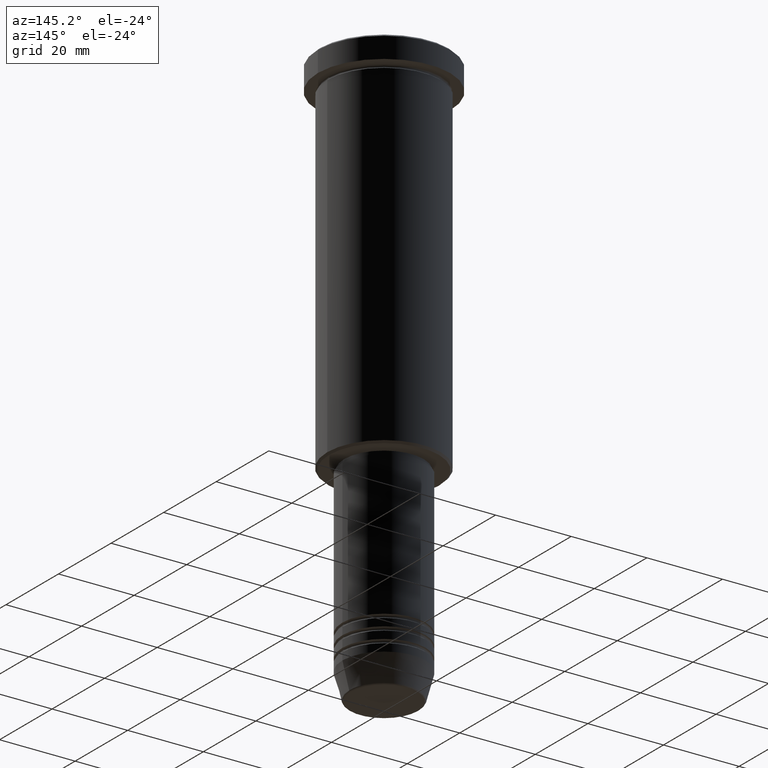
[diagram: clean part render]
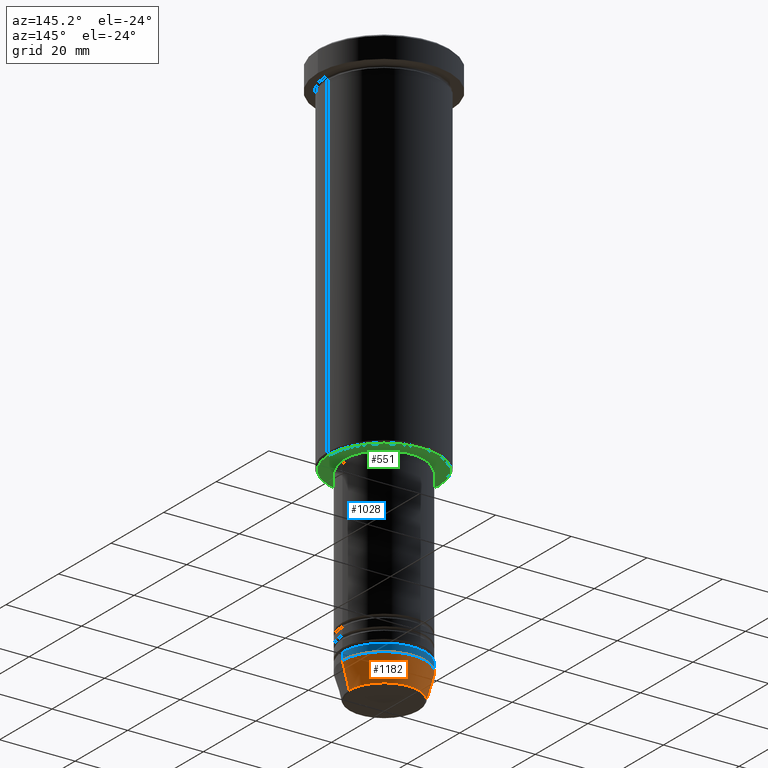
[diagram: same view with three faces highlighted in distinct colors, each labeled with its STEP entity id]
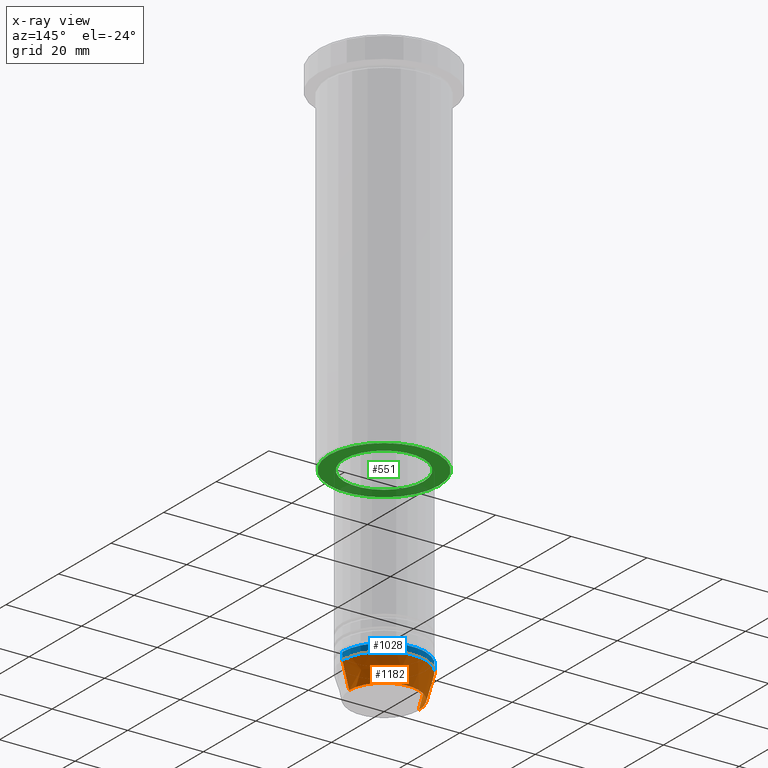
[diagram: x-ray of the same camera — body ghosted, the three highlighted faces saturated]
A machine part, auxiliary view with three faces highlighted in distinct colors.
The next image is the same camera in x-ray (body ghosted, the three faces saturated) — at least one of them is partly hidden behind the body in this view.
Their STEP definitions:

[orange] entity #1182 — the highlighted conical surface has half-angle 15 deg.
#10 = CIRCLE ( 'NONE', #714, 11.00000000000000000 ) ;
#34 = VECTOR ( 'NONE', #708, 1000.000000000000000 ) ;
#35 = VECTOR ( 'NONE', #484, 1000.000000000000000 ) ;
#102 = LINE ( 'NONE', #933, #35 ) ;
#109 = CARTESIAN_POINT ( 'NONE',  ( 0.000000000000000000, 0.000000000000000000, -144.0000000000000284 ) ) ;
#178 = CARTESIAN_POINT ( 'NONE',  ( 0.000000000000000000, 0.000000000000000000, -150.6294095225512706 ) ) ;
#242 = CARTESIAN_POINT ( 'NONE',  ( -11.00000000000000000, 1.347111479062088405E-15, -144.0000000000000284 ) ) ;
#278 = DIRECTION ( 'NONE',  ( -0.000000000000000000, -0.000000000000000000, 1.000000000000000000 ) ) ;
#287 = AXIS2_PLACEMENT_3D ( 'NONE', #178, #278, #1176 ) ;
#306 = AXIS2_PLACEMENT_3D ( 'NONE', #109, #1091, #464 ) ;
#319 = DIRECTION ( 'NONE',  ( 1.000000000000000000, 0.000000000000000000, 0.000000000000000000 ) ) ;
#337 = ORIENTED_EDGE ( 'NONE', *, *, #541, .T. ) ;
#383 = EDGE_CURVE ( 'NONE', #504, #710, #1144, .T. ) ;
#425 = ORIENTED_EDGE ( 'NONE', *, *, #860, .F. ) ;
#464 = DIRECTION ( 'NONE',  ( 1.000000000000000000, 0.000000000000000000, 0.000000000000000000 ) ) ;
#484 = DIRECTION ( 'NONE',  ( 0.2588190451025213501, 0.000000000000000000, 0.9659258262890680902 ) ) ;
#490 = VERTEX_POINT ( 'NONE', #827 ) ;
#504 = VERTEX_POINT ( 'NONE', #720 ) ;
#518 = CARTESIAN_POINT ( 'NONE',  ( 0.000000000000000000, 0.000000000000000000, -144.0000000000000284 ) ) ;
#541 = EDGE_CURVE ( 'NONE', #490, #504, #814, .T. ) ;
#580 = FACE_OUTER_BOUND ( 'NONE', #1114, .T. ) ;
#666 = ORIENTED_EDGE ( 'NONE', *, *, #1133, .F. ) ;
#708 = DIRECTION ( 'NONE',  ( -0.2588190451025213501, 3.169619151431772337E-17, 0.9659258262890680902 ) ) ;
#710 = VERTEX_POINT ( 'NONE', #934 ) ;
#714 = AXIS2_PLACEMENT_3D ( 'NONE', #518, #804, #319 ) ;
#720 = CARTESIAN_POINT ( 'NONE',  ( -9.223655072137189492, 1.238341722557647202E-15, -150.6294095225512706 ) ) ;
#803 = ORIENTED_EDGE ( 'NONE', *, *, #383, .T. ) ;
#804 = DIRECTION ( 'NONE',  ( -0.000000000000000000, -0.000000000000000000, 1.000000000000000000 ) ) ;
#814 = CIRCLE ( 'NONE', #287, 9.223655072137189492 ) ;
#827 = CARTESIAN_POINT ( 'NONE',  ( 9.223655072137189492, 0.000000000000000000, -150.6294095225512706 ) ) ;
#860 = EDGE_CURVE ( 'NONE', #967, #710, #10, .T. ) ;
#902 = CONICAL_SURFACE ( 'NONE', #306, 11.00000000000000000, 0.2617993877991500740 ) ;
#933 = CARTESIAN_POINT ( 'NONE',  ( 11.00000000000000000, 0.000000000000000000, -144.0000000000000284 ) ) ;
#934 = CARTESIAN_POINT ( 'NONE',  ( -11.00000000000000000, 1.347111479062088405E-15, -144.0000000000000284 ) ) ;
#967 = VERTEX_POINT ( 'NONE', #1078 ) ;
#1078 = CARTESIAN_POINT ( 'NONE',  ( 11.00000000000000000, 0.000000000000000000, -144.0000000000000284 ) ) ;
#1091 = DIRECTION ( 'NONE',  ( -0.000000000000000000, -0.000000000000000000, 1.000000000000000000 ) ) ;
#1114 = EDGE_LOOP ( 'NONE', ( #337, #803, #425, #666 ) ) ;
#1133 = EDGE_CURVE ( 'NONE', #490, #967, #102, .T. ) ;
#1144 = LINE ( 'NONE', #242, #34 ) ;
#1176 = DIRECTION ( 'NONE',  ( 1.000000000000000000, 0.000000000000000000, 0.000000000000000000 ) ) ;
#1182 = ADVANCED_FACE ( 'NONE', ( #580 ), #902, .T. ) ;

[blue] entity #1028 — the highlighted cylindrical surface (partial cylindrical patch) has radius 11 mm, axis along (-0, -0, 1).
#10 = CIRCLE ( 'NONE', #714, 11.00000000000000000 ) ;
#57 = EDGE_CURVE ( 'NONE', #710, #937, #60, .T. ) ;
#60 = LINE ( 'NONE', #423, #575 ) ;
#64 = LINE ( 'NONE', #979, #866 ) ;
#134 = ORIENTED_EDGE ( 'NONE', *, *, #433, .F. ) ;
#191 = EDGE_LOOP ( 'NONE', ( #998, #728, #317, #134 ) ) ;
#317 = ORIENTED_EDGE ( 'NONE', *, *, #1093, .F. ) ;
#319 = DIRECTION ( 'NONE',  ( 1.000000000000000000, 0.000000000000000000, 0.000000000000000000 ) ) ;
#357 = FACE_OUTER_BOUND ( 'NONE', #191, .T. ) ;
#423 = CARTESIAN_POINT ( 'NONE',  ( -11.00000000000000000, 1.347111479062088405E-15, 0.000000000000000000 ) ) ;
#433 = EDGE_CURVE ( 'NONE', #967, #760, #64, .T. ) ;
#434 = DIRECTION ( 'NONE',  ( -0.000000000000000000, -0.000000000000000000, 1.000000000000000000 ) ) ;
#444 = DIRECTION ( 'NONE',  ( -0.000000000000000000, -0.000000000000000000, 1.000000000000000000 ) ) ;
#518 = CARTESIAN_POINT ( 'NONE',  ( 0.000000000000000000, 0.000000000000000000, -144.0000000000000284 ) ) ;
#530 = AXIS2_PLACEMENT_3D ( 'NONE', #821, #444, #1086 ) ;
#537 = CYLINDRICAL_SURFACE ( 'NONE', #530, 11.00000000000000000 ) ;
#560 = DIRECTION ( 'NONE',  ( -0.000000000000000000, -0.000000000000000000, 1.000000000000000000 ) ) ;
#575 = VECTOR ( 'NONE', #434, 1000.000000000000000 ) ;
#635 = AXIS2_PLACEMENT_3D ( 'NONE', #766, #560, #1111 ) ;
#657 = CARTESIAN_POINT ( 'NONE',  ( 11.00000000000000000, 0.000000000000000000, -142.0000000000000284 ) ) ;
#710 = VERTEX_POINT ( 'NONE', #934 ) ;
#714 = AXIS2_PLACEMENT_3D ( 'NONE', #518, #804, #319 ) ;
#728 = ORIENTED_EDGE ( 'NONE', *, *, #57, .T. ) ;
#731 = CARTESIAN_POINT ( 'NONE',  ( -11.00000000000000000, 1.347111479062088405E-15, -142.0000000000000284 ) ) ;
#760 = VERTEX_POINT ( 'NONE', #657 ) ;
#766 = CARTESIAN_POINT ( 'NONE',  ( 0.000000000000000000, 0.000000000000000000, -142.0000000000000284 ) ) ;
#801 = DIRECTION ( 'NONE',  ( -0.000000000000000000, -0.000000000000000000, 1.000000000000000000 ) ) ;
#804 = DIRECTION ( 'NONE',  ( -0.000000000000000000, -0.000000000000000000, 1.000000000000000000 ) ) ;
#821 = CARTESIAN_POINT ( 'NONE',  ( 0.000000000000000000, 0.000000000000000000, 0.000000000000000000 ) ) ;
#860 = EDGE_CURVE ( 'NONE', #967, #710, #10, .T. ) ;
#866 = VECTOR ( 'NONE', #801, 1000.000000000000000 ) ;
#934 = CARTESIAN_POINT ( 'NONE',  ( -11.00000000000000000, 1.347111479062088405E-15, -144.0000000000000284 ) ) ;
#937 = VERTEX_POINT ( 'NONE', #731 ) ;
#957 = CIRCLE ( 'NONE', #635, 11.00000000000000000 ) ;
#967 = VERTEX_POINT ( 'NONE', #1078 ) ;
#979 = CARTESIAN_POINT ( 'NONE',  ( 11.00000000000000000, 0.000000000000000000, 0.000000000000000000 ) ) ;
#998 = ORIENTED_EDGE ( 'NONE', *, *, #860, .T. ) ;
#1028 = ADVANCED_FACE ( 'NONE', ( #357 ), #537, .T. ) ;
#1078 = CARTESIAN_POINT ( 'NONE',  ( 11.00000000000000000, 0.000000000000000000, -144.0000000000000284 ) ) ;
#1086 = DIRECTION ( 'NONE',  ( 1.000000000000000000, 0.000000000000000000, 0.000000000000000000 ) ) ;
#1093 = EDGE_CURVE ( 'NONE', #760, #937, #957, .T. ) ;
#1111 = DIRECTION ( 'NONE',  ( 1.000000000000000000, 0.000000000000000000, 0.000000000000000000 ) ) ;

[green] entity #551 — the highlighted planar face has unit normal (0, 0, -1).
#31 = DIRECTION ( 'NONE',  ( 0.000000000000000000, 0.000000000000000000, -1.000000000000000000 ) ) ;
#56 = CIRCLE ( 'NONE', #154, 14.49999999999999645 ) ;
#71 = AXIS2_PLACEMENT_3D ( 'NONE', #627, #1005, #353 ) ;
#77 = CARTESIAN_POINT ( 'NONE',  ( 0.000000000000000000, 15.00000000000000000, -96.00000000000000000 ) ) ;
#123 = ORIENTED_EDGE ( 'NONE', *, *, #639, .T. ) ;
#126 = CARTESIAN_POINT ( 'NONE',  ( -14.49999999999999645, 1.806354028742345802E-15, -96.00000000000000000 ) ) ;
#143 = EDGE_LOOP ( 'NONE', ( #603, #717 ) ) ;
#154 = AXIS2_PLACEMENT_3D ( 'NONE', #1174, #826, #364 ) ;
#169 = CIRCLE ( 'NONE', #845, 14.49999999999999645 ) ;
#180 = EDGE_LOOP ( 'NONE', ( #123, #1003 ) ) ;
#183 = FACE_BOUND ( 'NONE', #143, .T. ) ;
#189 = CARTESIAN_POINT ( 'NONE',  ( 0.000000000000000000, 0.000000000000000000, -96.00000000000000000 ) ) ;
#205 = VERTEX_POINT ( 'NONE', #126 ) ;
#226 = CARTESIAN_POINT ( 'NONE',  ( 10.49999999999999822, 0.000000000000000000, -96.00000000000000000 ) ) ;
#328 = CIRCLE ( 'NONE', #696, 10.49999999999999822 ) ;
#353 = DIRECTION ( 'NONE',  ( 1.000000000000000000, 0.000000000000000000, 0.000000000000000000 ) ) ;
#364 = DIRECTION ( 'NONE',  ( -1.000000000000000000, 0.000000000000000000, 0.000000000000000000 ) ) ;
#392 = VERTEX_POINT ( 'NONE', #966 ) ;
#446 = DIRECTION ( 'NONE',  ( 0.000000000000000000, 0.000000000000000000, -1.000000000000000000 ) ) ;
#517 = EDGE_CURVE ( 'NONE', #878, #1043, #556, .T. ) ;
#526 = FACE_OUTER_BOUND ( 'NONE', #180, .T. ) ;
#551 = ADVANCED_FACE ( 'NONE', ( #526, #183 ), #1076, .T. ) ;
#556 = CIRCLE ( 'NONE', #71, 10.49999999999999822 ) ;
#603 = ORIENTED_EDGE ( 'NONE', *, *, #517, .T. ) ;
#627 = CARTESIAN_POINT ( 'NONE',  ( 0.000000000000000000, 0.000000000000000000, -96.00000000000000000 ) ) ;
#639 = EDGE_CURVE ( 'NONE', #392, #205, #169, .T. ) ;
#670 = DIRECTION ( 'NONE',  ( -1.000000000000000000, 0.000000000000000000, 0.000000000000000000 ) ) ;
#696 = AXIS2_PLACEMENT_3D ( 'NONE', #189, #1034, #926 ) ;
#711 = CARTESIAN_POINT ( 'NONE',  ( -10.49999999999999822, 1.285879139104720633E-15, -96.00000000000000000 ) ) ;
#717 = ORIENTED_EDGE ( 'NONE', *, *, #1152, .T. ) ;
#826 = DIRECTION ( 'NONE',  ( 0.000000000000000000, 0.000000000000000000, -1.000000000000000000 ) ) ;
#845 = AXIS2_PLACEMENT_3D ( 'NONE', #1168, #31, #670 ) ;
#878 = VERTEX_POINT ( 'NONE', #226 ) ;
#926 = DIRECTION ( 'NONE',  ( 1.000000000000000000, 0.000000000000000000, 0.000000000000000000 ) ) ;
#965 = EDGE_CURVE ( 'NONE', #205, #392, #56, .T. ) ;
#966 = CARTESIAN_POINT ( 'NONE',  ( 14.49999999999999645, 0.000000000000000000, -96.00000000000000000 ) ) ;
#1003 = ORIENTED_EDGE ( 'NONE', *, *, #965, .T. ) ;
#1005 = DIRECTION ( 'NONE',  ( -0.000000000000000000, -0.000000000000000000, 1.000000000000000000 ) ) ;
#1034 = DIRECTION ( 'NONE',  ( -0.000000000000000000, -0.000000000000000000, 1.000000000000000000 ) ) ;
#1043 = VERTEX_POINT ( 'NONE', #711 ) ;
#1076 = PLANE ( 'NONE',  #1102 ) ;
#1079 = DIRECTION ( 'NONE',  ( -1.000000000000000000, 0.000000000000000000, -0.000000000000000000 ) ) ;
#1102 = AXIS2_PLACEMENT_3D ( 'NONE', #77, #446, #1079 ) ;
#1152 = EDGE_CURVE ( 'NONE', #1043, #878, #328, .T. ) ;
#1168 = CARTESIAN_POINT ( 'NONE',  ( 0.000000000000000000, 0.000000000000000000, -96.00000000000000000 ) ) ;
#1174 = CARTESIAN_POINT ( 'NONE',  ( 0.000000000000000000, 0.000000000000000000, -96.00000000000000000 ) ) ;